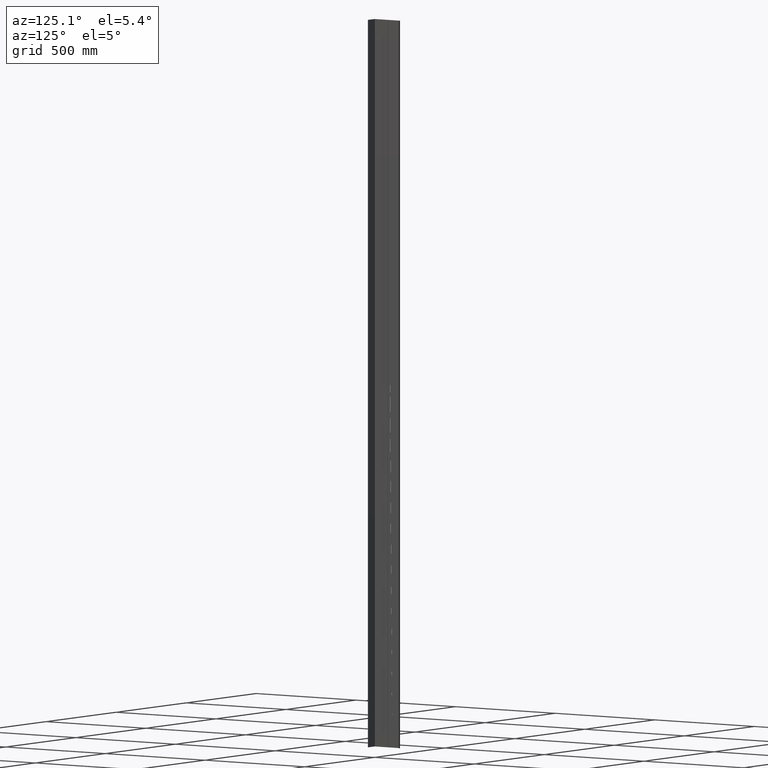
[diagram: clean part render]
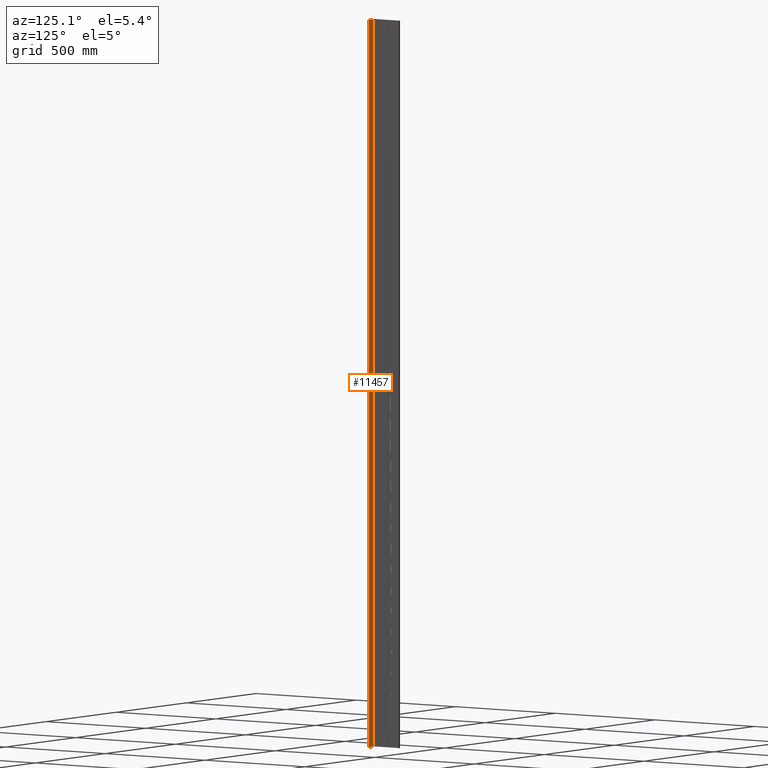
[diagram: same view with one face highlighted and labeled with its STEP entity id]
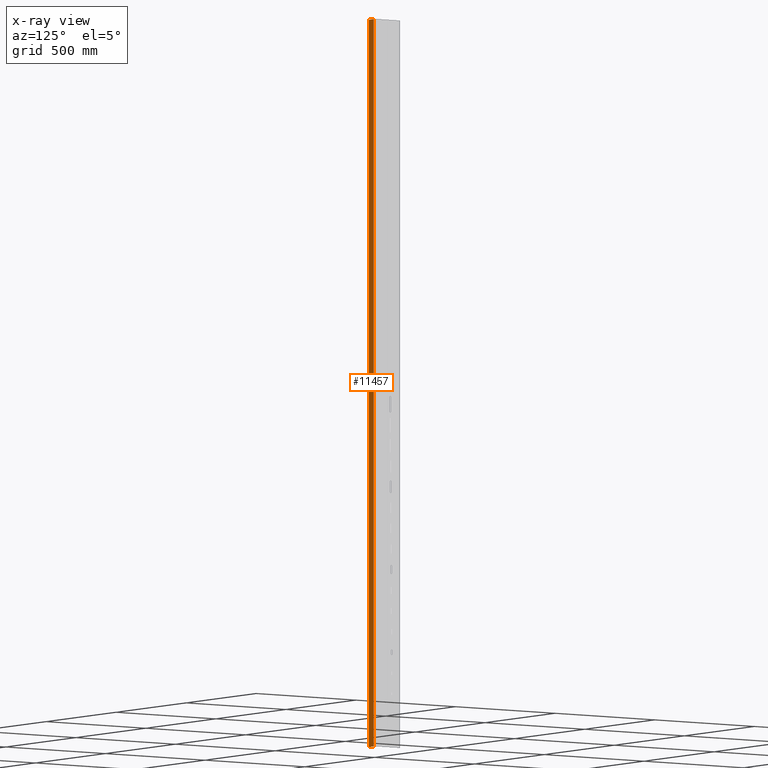
[diagram: x-ray of the same camera — body ghosted, the highlighted face saturated]
A machine part, auxiliary view. The second image highlights one B-rep face of the part: STEP entity #11457.
The next image is the same camera in x-ray: the body ghosted, the highlighted face saturated — about 0% of this face is hidden behind the body in this view.
In plain terms, the highlighted planar face has unit normal (0, -1, 0).
Its self-contained STEP definition (entity closure, byte-faithful):
#76 = CARTESIAN_POINT ( 'NONE',  ( 42.89999999996870600, 1.299999999990789600, 1500.000000000000000 ) ) ;
#91 = CARTESIAN_POINT ( 'NONE',  ( 42.89999999996870600, 1.299999999990789600, 1500.000000000000000 ) ) ;
#1224 = EDGE_CURVE ( 'NONE', #6596, #12154, #9001, .T. ) ;
#1978 = VECTOR ( 'NONE', #10228, 1000.000000000000000 ) ;
#1987 = ORIENTED_EDGE ( 'NONE', *, *, #12793, .F. ) ;
#2148 = CARTESIAN_POINT ( 'NONE',  ( 42.89999999996870600, 1.299999999990789600, -1500.000000000000000 ) ) ;
#3110 = VERTEX_POINT ( 'NONE', #10268 ) ;
#3442 = CARTESIAN_POINT ( 'NONE',  ( 9.300000000017208300, 1.299999999990785400, 1500.000000000000000 ) ) ;
#3504 = VECTOR ( 'NONE', #6915, 1000.000000000000000 ) ;
#4011 = AXIS2_PLACEMENT_3D ( 'NONE', #76, #15265, #4599 ) ;
#4063 = LINE ( 'NONE', #3442, #3504 ) ;
#4599 = DIRECTION ( 'NONE',  ( 1.000000000000000000, 1.226181028407995000E-016, 0.0000000000000000000 ) ) ;
#4619 = VECTOR ( 'NONE', #5677, 1000.000000000000000 ) ;
#5487 = VECTOR ( 'NONE', #14891, 1000.000000000000000 ) ;
#5677 = DIRECTION ( 'NONE',  ( -1.000000000000000000, -1.226181028407995000E-016, 0.0000000000000000000 ) ) ;
#6596 = VERTEX_POINT ( 'NONE', #91 ) ;
#6915 = DIRECTION ( 'NONE',  ( -0.0000000000000000000, -0.0000000000000000000, -1.000000000000000000 ) ) ;
#8432 = ORIENTED_EDGE ( 'NONE', *, *, #14831, .T. ) ;
#8613 = CARTESIAN_POINT ( 'NONE',  ( 9.300000000017208300, 1.299999999990785400, 1500.000000000000000 ) ) ;
#9001 = LINE ( 'NONE', #12520, #5487 ) ;
#9266 = VERTEX_POINT ( 'NONE', #8613 ) ;
#9747 = CARTESIAN_POINT ( 'NONE',  ( 42.89999999996870600, 1.299999999990789600, -1500.000000000000000 ) ) ;
#10228 = DIRECTION ( 'NONE',  ( -1.000000000000000000, -1.226181028407995000E-016, 0.0000000000000000000 ) ) ;
#10268 = CARTESIAN_POINT ( 'NONE',  ( 9.300000000017208300, 1.299999999990785400, -1500.000000000000000 ) ) ;
#10319 = EDGE_CURVE ( 'NONE', #9266, #3110, #4063, .T. ) ;
#10374 = ORIENTED_EDGE ( 'NONE', *, *, #1224, .T. ) ;
#10718 = LINE ( 'NONE', #2148, #4619 ) ;
#11457 = ADVANCED_FACE ( 'NONE', ( #13314 ), #13037, .F. ) ;
#12154 = VERTEX_POINT ( 'NONE', #9747 ) ;
#12520 = CARTESIAN_POINT ( 'NONE',  ( 42.89999999996870600, 1.299999999990789600, 1500.000000000000000 ) ) ;
#12793 = EDGE_CURVE ( 'NONE', #6596, #9266, #15298, .T. ) ;
#12922 = ORIENTED_EDGE ( 'NONE', *, *, #10319, .F. ) ;
#13037 = PLANE ( 'NONE',  #4011 ) ;
#13314 = FACE_OUTER_BOUND ( 'NONE', #13912, .T. ) ;
#13831 = CARTESIAN_POINT ( 'NONE',  ( 42.89999999996870600, 1.299999999990789600, 1500.000000000000000 ) ) ;
#13912 = EDGE_LOOP ( 'NONE', ( #8432, #12922, #1987, #10374 ) ) ;
#14831 = EDGE_CURVE ( 'NONE', #12154, #3110, #10718, .T. ) ;
#14891 = DIRECTION ( 'NONE',  ( -0.0000000000000000000, -0.0000000000000000000, -1.000000000000000000 ) ) ;
#15265 = DIRECTION ( 'NONE',  ( 1.226181028407995000E-016, -1.000000000000000000, 0.0000000000000000000 ) ) ;
#15298 = LINE ( 'NONE', #13831, #1978 ) ;